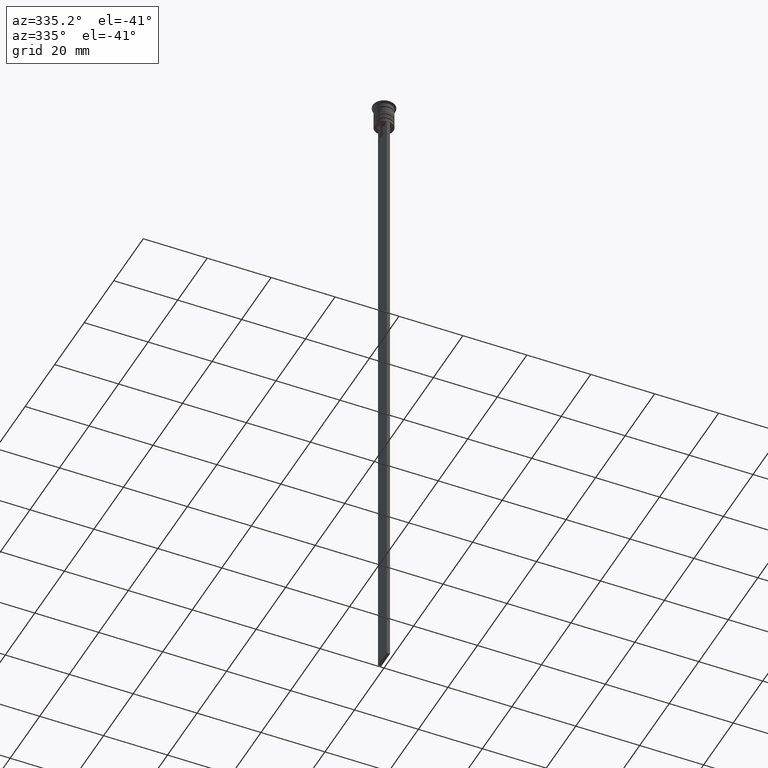
[diagram: clean part render]
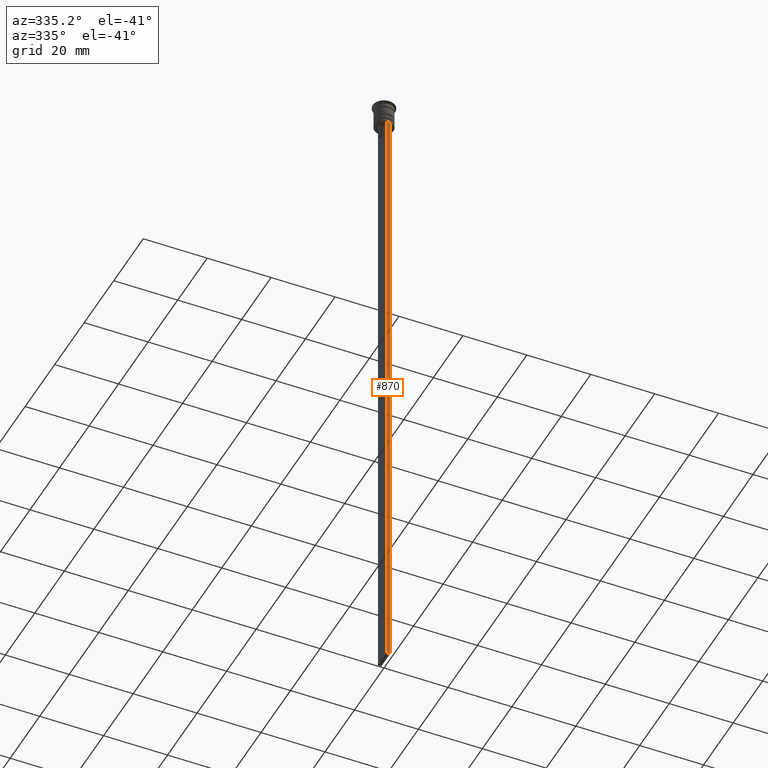
[diagram: same view with one face highlighted and labeled with its STEP entity id]
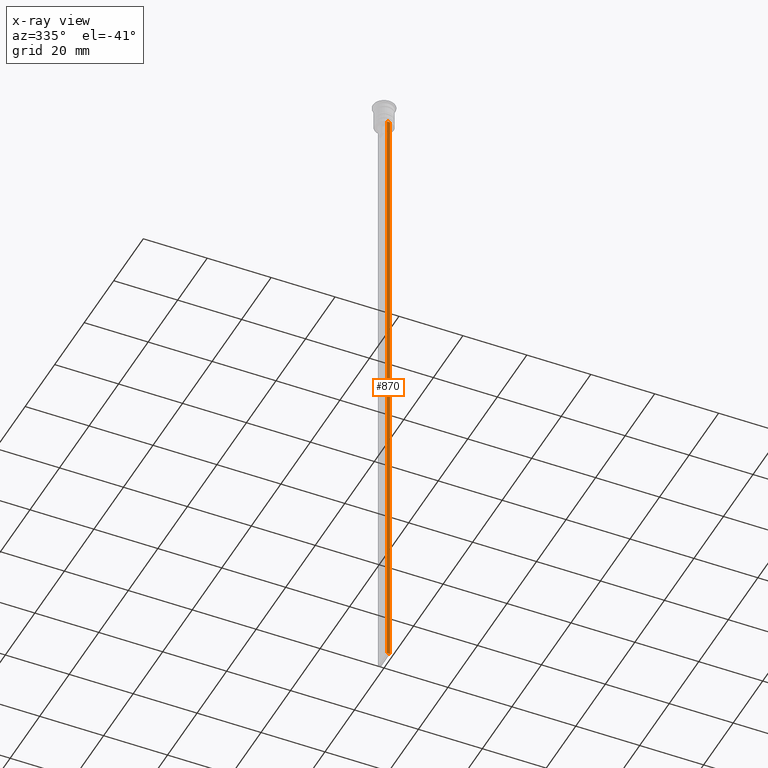
[diagram: x-ray of the same camera — body ghosted, the highlighted face saturated]
A machine part, auxiliary view. The second image highlights one B-rep face of the part: STEP entity #870.
The next image is the same camera in x-ray: the body ghosted, the highlighted face saturated — about 0% of this face is hidden behind the body in this view.
In plain terms, the highlighted planar face has unit normal (0, -1, -0).
Its self-contained STEP definition (entity closure, byte-faithful):
#111 = VERTEX_POINT ( 'NONE', #1236 ) ;
#146 = EDGE_CURVE ( 'NONE', #1951, #1389, #1745, .T. ) ;
#265 = DIRECTION ( 'NONE',  ( 0.000000000000000000, 0.000000000000000000, -1.000000000000000000 ) ) ;
#352 = CARTESIAN_POINT ( 'NONE',  ( 0.4999999999999998890, -3.000000000000000000, -207.5000000000000284 ) ) ;
#602 = DIRECTION ( 'NONE',  ( 1.000000000000000000, 0.000000000000000000, 0.000000000000000000 ) ) ;
#607 = CARTESIAN_POINT ( 'NONE',  ( 0.4999999999999998890, -3.000000000000000000, -7.500000000000000000 ) ) ;
#616 = FACE_OUTER_BOUND ( 'NONE', #1423, .T. ) ;
#632 = LINE ( 'NONE', #1882, #2244 ) ;
#718 = LINE ( 'NONE', #1465, #803 ) ;
#795 = VERTEX_POINT ( 'NONE', #607 ) ;
#803 = VECTOR ( 'NONE', #1815, 1000.000000000000000 ) ;
#870 = ADVANCED_FACE ( 'NONE', ( #616 ), #1336, .T. ) ;
#1101 = VECTOR ( 'NONE', #1431, 1000.000000000000000 ) ;
#1147 = CARTESIAN_POINT ( 'NONE',  ( 0.4999999999999998890, -3.000000000000000000, -1.417237469701779329 ) ) ;
#1236 = CARTESIAN_POINT ( 'NONE',  ( -0.5000000000000001110, -3.000000000000000000, -7.500000000000000000 ) ) ;
#1298 = AXIS2_PLACEMENT_3D ( 'NONE', #1147, #2073, #2050 ) ;
#1336 = PLANE ( 'NONE',  #1298 ) ;
#1389 = VERTEX_POINT ( 'NONE', #2105 ) ;
#1423 = EDGE_LOOP ( 'NONE', ( #2162, #2080, #1836, #1591 ) ) ;
#1431 = DIRECTION ( 'NONE',  ( -1.000000000000000000, 0.000000000000000000, 0.000000000000000000 ) ) ;
#1465 = CARTESIAN_POINT ( 'NONE',  ( 0.4999999999999998890, -3.000000000000000000, -1.417237469701779329 ) ) ;
#1501 = LINE ( 'NONE', #2222, #2243 ) ;
#1552 = EDGE_CURVE ( 'NONE', #795, #1951, #718, .T. ) ;
#1591 = ORIENTED_EDGE ( 'NONE', *, *, #1552, .F. ) ;
#1727 = EDGE_CURVE ( 'NONE', #111, #795, #1501, .T. ) ;
#1745 = LINE ( 'NONE', #2275, #1101 ) ;
#1815 = DIRECTION ( 'NONE',  ( 0.000000000000000000, 0.000000000000000000, -1.000000000000000000 ) ) ;
#1836 = ORIENTED_EDGE ( 'NONE', *, *, #146, .F. ) ;
#1882 = CARTESIAN_POINT ( 'NONE',  ( -0.5000000000000001110, -3.000000000000000000, -1.417237469701779329 ) ) ;
#1951 = VERTEX_POINT ( 'NONE', #352 ) ;
#2050 = DIRECTION ( 'NONE',  ( 0.000000000000000000, 0.000000000000000000, -1.000000000000000000 ) ) ;
#2064 = EDGE_CURVE ( 'NONE', #111, #1389, #632, .T. ) ;
#2073 = DIRECTION ( 'NONE',  ( 0.000000000000000000, -1.000000000000000000, -0.000000000000000000 ) ) ;
#2080 = ORIENTED_EDGE ( 'NONE', *, *, #2064, .T. ) ;
#2105 = CARTESIAN_POINT ( 'NONE',  ( -0.5000000000000001110, -3.000000000000000000, -207.5000000000000284 ) ) ;
#2162 = ORIENTED_EDGE ( 'NONE', *, *, #1727, .F. ) ;
#2222 = CARTESIAN_POINT ( 'NONE',  ( 0.4999999999999998890, -3.000000000000000000, -7.500000000000000000 ) ) ;
#2243 = VECTOR ( 'NONE', #602, 1000.000000000000000 ) ;
#2244 = VECTOR ( 'NONE', #265, 1000.000000000000000 ) ;
#2275 = CARTESIAN_POINT ( 'NONE',  ( 0.4999999999999998890, -3.000000000000000000, -207.5000000000000284 ) ) ;